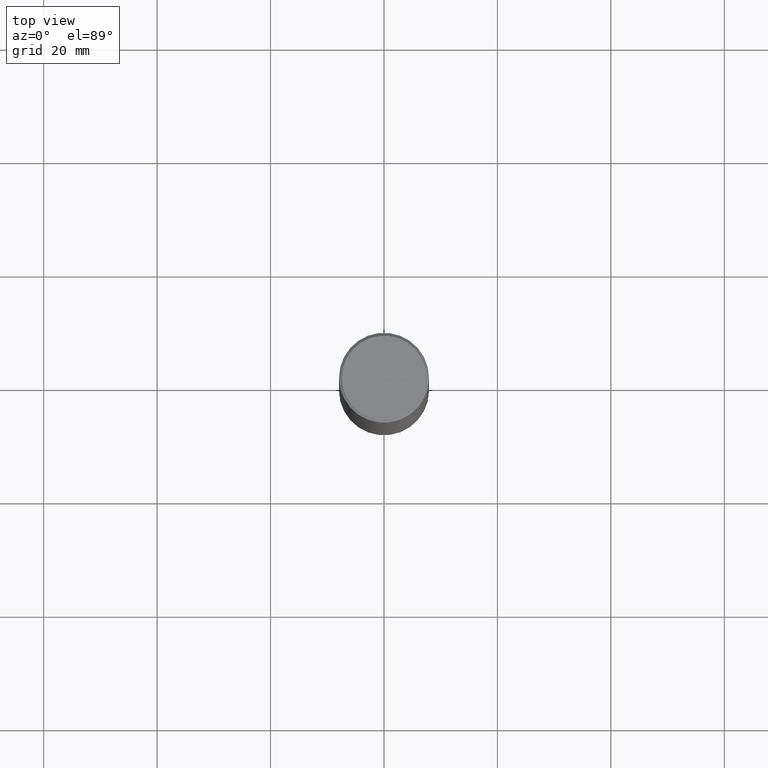
[diagram: clean part render]
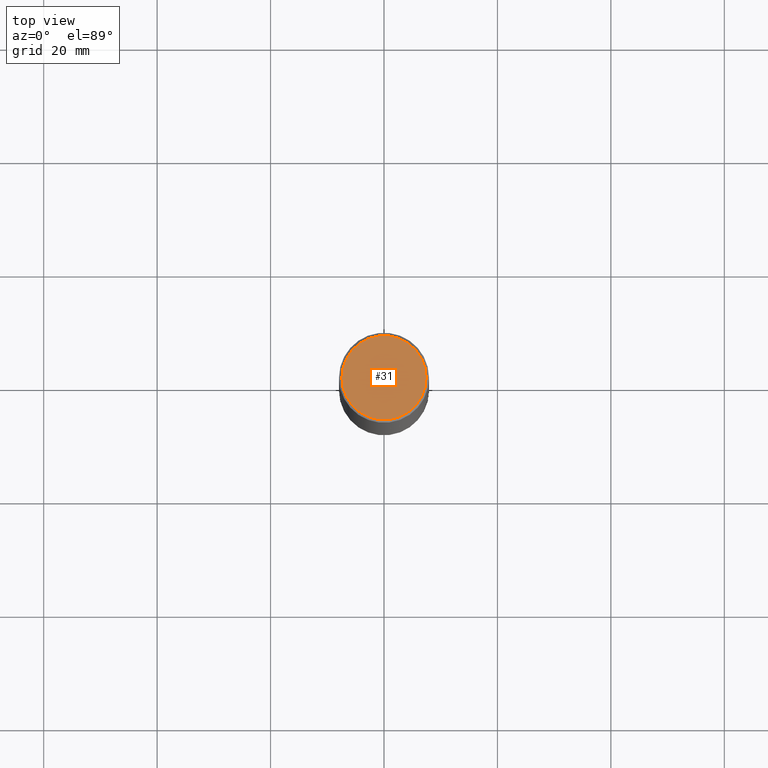
[diagram: same view with one face highlighted and labeled with its STEP entity id]
A machine part, top view. The second image highlights one B-rep face of the part: STEP entity #31.
In plain terms, the highlighted planar face has unit normal (0, -0, -1).
Its self-contained STEP definition (entity closure, byte-faithful):
#24 = AXIS2_PLACEMENT_3D ( 'NONE', #292, #129, #100 ) ;
#31 = ADVANCED_FACE ( 'NONE', ( #349 ), #156, .F. ) ;
#69 = DIRECTION ( 'NONE',  ( 2.438088387897960049E-29, -3.491481338843145188E-15, -1.000000000000000000 ) ) ;
#97 = DIRECTION ( 'NONE',  ( -1.000000000000000000, 6.982962677686265922E-15, -4.876176775795935793E-29 ) ) ;
#98 = CARTESIAN_POINT ( 'NONE',  ( 2.042516583223230567E-15, 0.2924999999999997047, -1.016989779121518604E-15 ) ) ;
#100 = DIRECTION ( 'NONE',  ( 1.000000000000000000, -6.982962677686265133E-15, 4.876067333457694521E-29 ) ) ;
#122 = EDGE_CURVE ( 'NONE', #322, #346, #269, .T. ) ;
#129 = DIRECTION ( 'NONE',  ( -2.445468806185136597E-29, 3.491481338843145583E-15, 1.000000000000000000 ) ) ;
#139 = AXIS2_PLACEMENT_3D ( 'NONE', #98, #69, #97 ) ;
#156 = PLANE ( 'NONE',  #139 ) ;
#160 = CARTESIAN_POINT ( 'NONE',  ( -0.2924999999999997047, 2.077431396611661822E-15, 8.537024980186416602E-18 ) ) ;
#190 = CARTESIAN_POINT ( 'NONE',  ( 0.2924999999999997047, -2.110215457714317959E-15, 8.537024980215342529E-18 ) ) ;
#202 = ORIENTED_EDGE ( 'NONE', *, *, #122, .T. ) ;
#236 = EDGE_CURVE ( 'NONE', #346, #322, #333, .T. ) ;
#269 = CIRCLE ( 'NONE', #24, 0.2924999999999997047 ) ;
#278 = AXIS2_PLACEMENT_3D ( 'NONE', #357, #331, #280 ) ;
#280 = DIRECTION ( 'NONE',  ( 1.000000000000000000, -6.982962677686265133E-15, 4.876067333457694521E-29 ) ) ;
#289 = EDGE_LOOP ( 'NONE', ( #334, #202 ) ) ;
#292 = CARTESIAN_POINT ( 'NONE',  ( -2.087702828670439639E-46, 2.980686340760894400E-32, 8.537024980200822558E-18 ) ) ;
#322 = VERTEX_POINT ( 'NONE', #190 ) ;
#331 = DIRECTION ( 'NONE',  ( -2.445468806185136597E-29, 3.491481338843145583E-15, 1.000000000000000000 ) ) ;
#333 = CIRCLE ( 'NONE', #278, 0.2924999999999997047 ) ;
#334 = ORIENTED_EDGE ( 'NONE', *, *, #236, .T. ) ;
#346 = VERTEX_POINT ( 'NONE', #160 ) ;
#349 = FACE_OUTER_BOUND ( 'NONE', #289, .T. ) ;
#357 = CARTESIAN_POINT ( 'NONE',  ( -2.087702828670439639E-46, 2.980686340760894400E-32, 8.537024980200822558E-18 ) ) ;